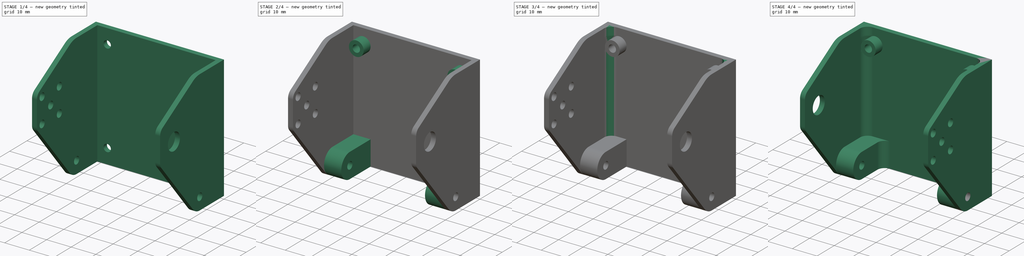
[diagram: build sequence overview — one tinted view per stage of 4, left to right]
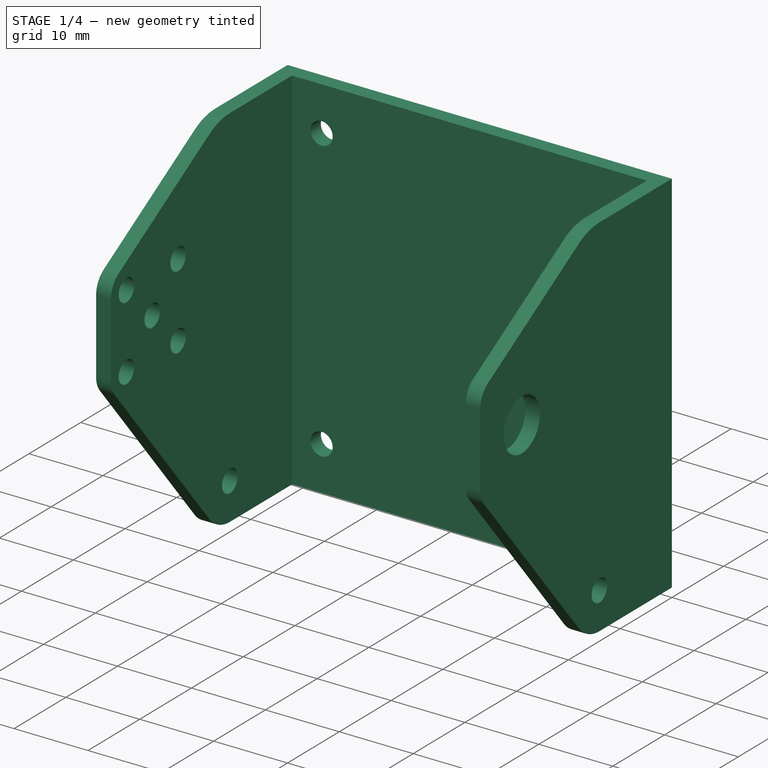
[diagram: stage 1 of 4 — iso view after this stage's code; geometry added in this stage tinted green]
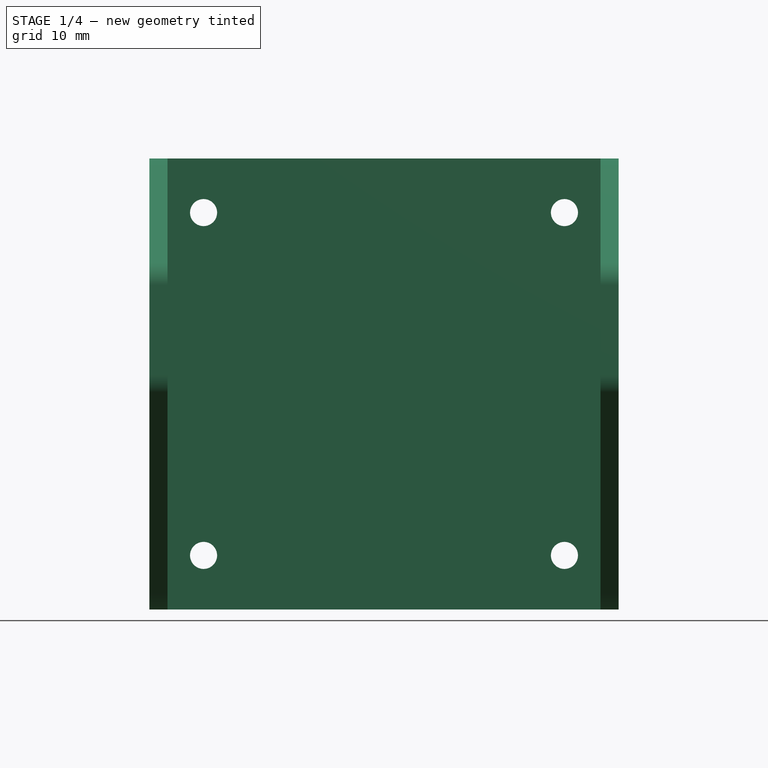
[diagram: stage 1 of 4 — front view after this stage's code; geometry added in this stage tinted green]
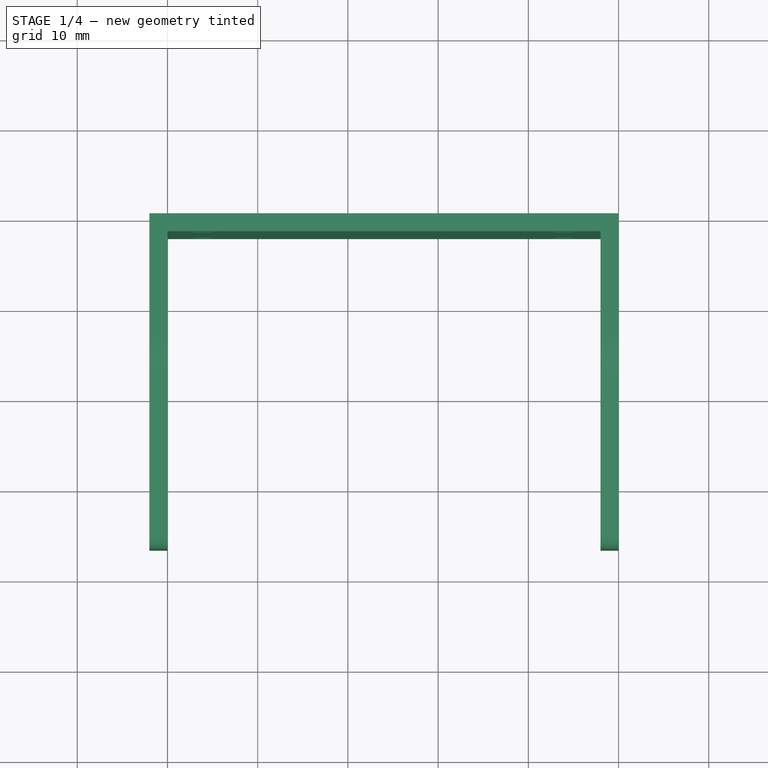
[diagram: stage 1 of 4 — top view after this stage's code; geometry added in this stage tinted green]
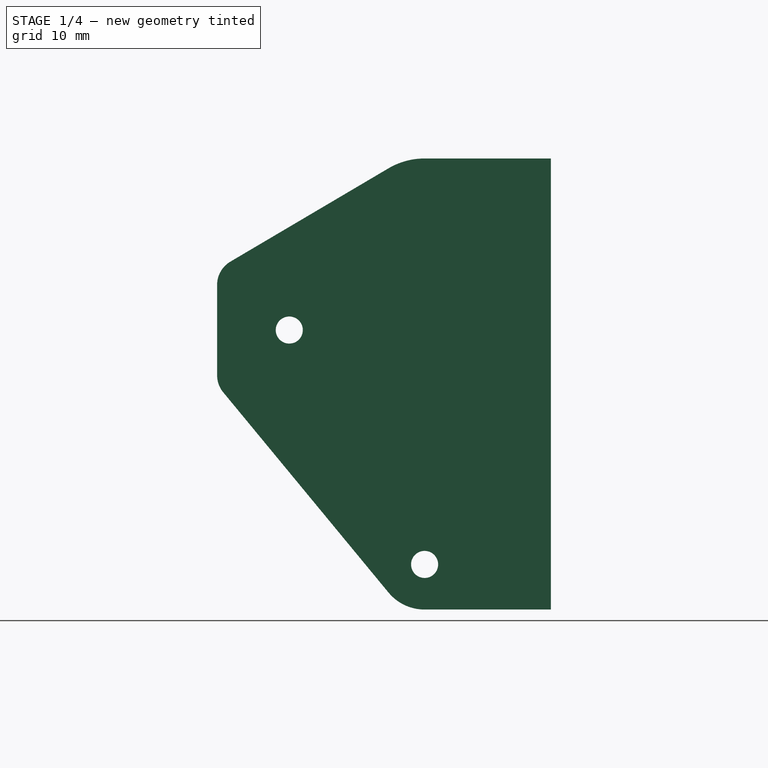
[diagram: stage 1 of 4 — right view after this stage's code; geometry added in this stage tinted green]
FCSTD DOCUMENT  (FreeCAD 0.20R29177 +426 (Git))
Label: 5L_hipjoint_lower
License: All rights reserved
LicenseURL: http://en.wikipedia.org/wiki/All_rights_reserved
objects: Sketcher::SketchObject×7, PartDesign::Pad×6, PartDesign::Fillet×4, Spreadsheet::Sheet×1, PartDesign::Pocket×1, PartDesign::Body×1, Part::Mirroring×1
note: 31 computed .brp shape members not serialized (recipe doc carries the construction recipe); baked Part::Feature solids carry a one-line shape summary decoded from their .brp

FEATURE [Spreadsheet::Sheet] Spreadsheet
  cells = A2=thickness; B2(thickness)=2; A4=hip_plate_width; B4(hip_plate_width)=48; C4=equal to knee_x_len; A5=hip_plate_depth; B5(hip_plate_depth)=50; C5=z; A6=screw_distance; B6(screw_distance)=7; A7=screw_center_height; B7(screw_center_height)=25; A8=screw_dia; B8(screw_dia)=3; A9=axis_dia; B9(axis_dia)=6; A10=axis_hole_dia; B10(axis_hole_dia)=7; A12=screw_servo_distance; B12(screw_servo_distance)==sqrt(B14 * B14 - B13 * B13); C12=variable e; A13=screw_servo_height; B13(screw_servo_height)=15; C13=variable a; A14=screw_servo_radius; B14(screw_servo_radius)=30; C14=variable f; A15=screw_servo_clearance; B15(screw_servo_clearance)=14; A17=knee_z_len; B17(knee_z_len)=40; A18=knee_x_len; B18(knee_x_len)=50; A19=knee_y_len; B19(knee_y_len)=44; A20=knee_front_len; B20(knee_front_len)==68 - 2 * B22; A21=knee_back_len; B21(knee_back_len)=36; A22=screw_outer_radius; B22(screw_outer_radius)=3; A23=knee_front_holes_dist; B23(knee_front_holes_dist)=55; A24=knee_front_holes_y_offset; B24(knee_front_holes_y_offset)=5; A25=knee_front_back_whole_dist; B25(knee_front_back_whole_dist)=30; A26=knee_back_holes_dist; B26(knee_back_holes_dist)=25
FEATURE [Sketcher::SketchObject] Sketch  label="baseSketch"
  FullyConstrained = true
  MapMode = 5
  Placement = pos=(0,0,0) rot=(1,0,0;1.5708rad)
  Support = -> [XZ_Plane]
  expr: Constraints[10] = Spreadsheet.hip_plate_width
  expr: Constraints[9] = Spreadsheet.hip_plate_depth
  sketch-geometry (8):
    g0: LineSegment StartX=0 StartY=0 StartZ=0 EndX=48 EndY=0 EndZ=0
    g1: LineSegment StartX=48 StartY=0 StartZ=0 EndX=48 EndY=50 EndZ=0
    g2: LineSegment StartX=48 StartY=50 StartZ=0 EndX=0 EndY=50 EndZ=0
    g3: LineSegment StartX=0 StartY=50 StartZ=0 EndX=0 EndY=0 EndZ=0
    g4: Circle CenterX=4 CenterY=44 CenterZ=0 NormalX=0 NormalY=0 NormalZ=1 AngleXU=0 Radius=1.5
    g5: Circle CenterX=44 CenterY=44 CenterZ=0 NormalX=0 NormalY=0 NormalZ=1 AngleXU=0 Radius=1.5
    g6: Circle CenterX=4 CenterY=6 CenterZ=0 NormalX=0 NormalY=0 NormalZ=1 AngleXU=0 Radius=1.5
    g7: Circle CenterX=44 CenterY=6 CenterZ=0 NormalX=0 NormalY=0 NormalZ=1 AngleXU=0 Radius=1.5
  constraints (23):
    c: Coincident(g0,g1)
    c: Coincident(g1,g2)
    c: Coincident(g2,g3)
    c: Coincident(g3,g0)
    c: Horizontal(g0)
    c: Horizontal(g2)
    c: Vertical(g1)
    c: Vertical(g3)
    c: Coincident(g0,g-1)
    c: DistanceY(g0,g1) = 50
    c: DistanceX(g0,g0) = 48
    c: DistanceX(g0,g6) = 4
    c: DistanceY(g0,g6) = 6
    c: DistanceY(g0,g7) = 6
    c: DistanceY(g5,g1) = 6
    c: DistanceY(g4,g2) = 6
    c: DistanceX(g2,g4) = 4
    c: DistanceX(g5,g1) = 4
    c: DistanceX(g7,g0) = 4
    c: Diameter(g5) = 3
    c: Diameter(g4) = 3
    c: Diameter(g6) = 3
    c: Diameter(g7) = 3
FEATURE [PartDesign::Pad] Pad  label="basePad"
  Direction = (0,-1,-2e-16)
  Length = 2
  Length2 = 10
  Placement = pos=(0,0,0) rot=(1,0,0;1.5708rad)
  Profile = -> Sketch
  ReferenceAxis = -> Sketch [N_Axis]
  Type = 0
  expr: Length = Spreadsheet.thickness
FEATURE [Sketcher::SketchObject] Sketch001  label="outerSideSketch"
  ExternalGeometry = -> [Pad]
  FullyConstrained = true
  MapMode = 5
  Placement = pos=(0,0,0) rot=(0.707107,0,-0.707107;3.14159rad)
  Support = -> [Pad]
  expr: Constraints[18] = Spreadsheet.screw_servo_distance
  expr: Constraints[19] = Spreadsheet.screw_servo_height
  expr: Constraints[20] = Spreadsheet.screw_dia
  expr: Constraints[29] = Spreadsheet.screw_servo_clearance
  expr: Constraints[38] = Spreadsheet.screw_servo_clearance + 4
  expr: Constraints[9] = Spreadsheet.screw_dia
  sketch-geometry (16):
    g0: LineSegment StartX=-50 StartY=0 StartZ=0 EndX=0 EndY=0 EndZ=0
    g1: LineSegment StartX=-1.8849 StartY=18 StartZ=0 EndX=-24.071 EndY=36.3136 EndZ=0
    g2: LineSegment StartX=-25.9808 StartY=37 StartZ=0 EndX=-35.9808 EndY=37 EndZ=0
    g3: LineSegment StartX=-38.5643 StartY=35.5248 StartZ=0 EndX=-48.9076 EndY=18 EndZ=0
    g4: Circle CenterX=-5 CenterY=14 CenterZ=0 NormalX=0 NormalY=0 NormalZ=1 AngleXU=0 Radius=1.5
    g5: Circle CenterX=-30.9808 CenterY=29 CenterZ=0 NormalX=0 NormalY=0 NormalZ=1 AngleXU=0 Radius=1.5
    g6: Circle CenterX=-25.9808 CenterY=24 CenterZ=0 NormalX=0 NormalY=0 NormalZ=1 AngleXU=0 Radius=1.5
    g7: Circle CenterX=-25.9808 CenterY=34 CenterZ=0 NormalX=0 NormalY=0 NormalZ=1 AngleXU=0 Radius=1.5
    g8: Circle CenterX=-35.9808 CenterY=34 CenterZ=0 NormalX=0 NormalY=0 NormalZ=1 AngleXU=0 Radius=1.5
    g9: Circle CenterX=-35.9808 CenterY=24 CenterZ=0 NormalX=0 NormalY=0 NormalZ=1 AngleXU=0 Radius=1.5
    g10: ArcOfCircle CenterX=-35.9808 CenterY=34 CenterZ=0 NormalX=0 NormalY=0 NormalZ=1 AngleXU=0 Radius=3 StartAngle=1.5708 EndAngle=2.6084
    g11: ArcOfCircle CenterX=-25.9808 CenterY=34 CenterZ=0 NormalX=0 NormalY=0 NormalZ=1 AngleXU=0 Radius=3 StartAngle=0.880726 EndAngle=1.5708
    g12: LineSegment StartX=-50 StartY=14 StartZ=0 EndX=-50 EndY=0 EndZ=0
    g13: LineSegment StartX=0 StartY=14 StartZ=0 EndX=0 EndY=0 EndZ=0
    g14: ArcOfCircle CenterX=-42.1303 CenterY=14 CenterZ=0 NormalX=0 NormalY=0 NormalZ=1 AngleXU=0 Radius=7.86966 StartAngle=2.6084 EndAngle=3.14159
    g15: ArcOfCircle CenterX=-5.18671 CenterY=14 CenterZ=0 NormalX=0 NormalY=0 NormalZ=1 AngleXU=0 Radius=5.18671 StartAngle=2e-16 EndAngle=0.880726
  constraints (39):
    c: Vertical(g8,g9)
    c: Vertical(g7,g6)
    c: Horizontal(g8,g7)
    c: Horizontal(g9,g6)
    c: Symmetric(g8,g6,g5)
    c: Equal(g8,g9)
    c: Equal(g8,g5)
    c: Equal(g8,g6)
    c: Equal(g8,g7)
    c: Diameter(g8) = 3
    c: DistanceX(g9,g6) = 10
    c: DistanceY(g9,g8) = 10
    c: Tangent(g2,g10) = -1.5708
    c: Tangent(g3,g10) = -1.5708
    c: Tangent(g2,g11) = -1.5708
    c: Tangent(g1,g11) = -1.5708
    c: Radius(g10) = 3
    c: Radius(g11) = 3
    c: DistanceX(g5,g4) = 25.9808
    c: DistanceY(g4,g5) = 15
    c: Diameter(g4) = 3
    c: Coincident(g0,g-3)
    c: Coincident(g0,g-1)
    c: Coincident(g8,g10)
    c: Coincident(g7,g11)
    c: Coincident(g12,g0)
    c: Coincident(g13,g0)
    c: Vertical(g12)
    c: Vertical(g13)
    c: DistanceY(g0,g4) = 14
    c: Equal(g12,g13)
    c: DistanceX(g4,g0) = 5
    c: Tangent(g3,g14) = -1.5708
    c: Tangent(g12,g14) = -1.5708
    c: Tangent(g1,g15) = -1.5708
    c: Tangent(g13,g15) = 1.5708
    c: Horizontal(g12,g4)
    c: Horizontal(g3,g1)
    c: DistanceY(g0,g3) = 18
FEATURE [PartDesign::Pad] Pad001  label="outerSidePad"
  BaseFeature = -> Pad
  Direction = (-1,0,-2e-16)
  Length = 2
  Length2 = 10
  Placement = pos=(0,0,0) rot=(1,0,0;1.5708rad)
  Profile = -> Sketch001
  ReferenceAxis = -> Sketch001 [N_Axis]
  Type = 0
  expr: Length = Spreadsheet.thickness
FEATURE [Sketcher::SketchObject] Sketch002  label="innerSideSketch"
  ExternalGeometry = -> [Pad]
  FullyConstrained = true
  MapMode = 5
  Placement = pos=(48,0,0) rot=(0.707107,0,0.707107;3.14159rad)
  Support = -> [Pad001]
  expr: Constraints[27] = Spreadsheet.screw_servo_clearance
  expr: Constraints[28] = Spreadsheet.screw_servo_clearance + 4
  expr: Constraints[2] = 5
  expr: Constraints[30] = Spreadsheet.hip_plate_depth
  expr: Constraints[3] = Spreadsheet.screw_dia
  expr: Constraints[4] = Spreadsheet.axis_hole_dia
  expr: Constraints[6] = Spreadsheet.screw_servo_distance
  expr: Constraints[7] = Spreadsheet.screw_servo_height
  expr: Constraints[8] = Spreadsheet.screw_servo_clearance
  sketch-geometry (12):
    g0: LineSegment StartX=24.071 StartY=36.3136 StartZ=0 EndX=1.8849 EndY=18 EndZ=0
    g1: LineSegment StartX=25.9808 StartY=37 StartZ=0 EndX=35.9808 EndY=37 EndZ=0
    g2: LineSegment StartX=38.5643 StartY=35.5248 StartZ=0 EndX=48.9076 EndY=18 EndZ=0
    g3: LineSegment StartX=50 StartY=0 StartZ=0 EndX=0 EndY=0 EndZ=0
    g4: ArcOfCircle CenterX=25.9808 CenterY=34 CenterZ=0 NormalX=0 NormalY=0 NormalZ=1 AngleXU=0 Radius=3 StartAngle=1.5708 EndAngle=2.26087
    g5: ArcOfCircle CenterX=35.9808 CenterY=34 CenterZ=0 NormalX=0 NormalY=0 NormalZ=1 AngleXU=0 Radius=3 StartAngle=0.533188 EndAngle=1.5708
    g6: Circle CenterX=30.9808 CenterY=29 CenterZ=0 NormalX=0 NormalY=0 NormalZ=1 AngleXU=0 Radius=3.5
    g7: Circle CenterX=5 CenterY=14 CenterZ=0 NormalX=0 NormalY=0 NormalZ=1 AngleXU=0 Radius=1.5
    g8: LineSegment StartX=0 StartY=14 StartZ=0 EndX=0 EndY=0 EndZ=0
    g9: LineSegment StartX=50 StartY=14 StartZ=0 EndX=50 EndY=0 EndZ=0
    g10: ArcOfCircle CenterX=5.18671 CenterY=14 CenterZ=0 NormalX=0 NormalY=0 NormalZ=1 AngleXU=0 Radius=5.18671 StartAngle=2.26087 EndAngle=3.14159
    g11: ArcOfCircle CenterX=42.1303 CenterY=14 CenterZ=0 NormalX=0 NormalY=0 NormalZ=1 AngleXU=0 Radius=7.86966 StartAngle=0 EndAngle=0.533188
  constraints (31):
    c: Equal(g4,g5)
    c: Radius(g4) = 3
    c: DistanceX(g3,g7) = 5
    c: Diameter(g7) = 3
    c: Diameter(g6) = 7
    c: Coincident(g3,g-1)
    c: DistanceX(g7,g6) = 25.9808
    c: DistanceY(g7,g6) = 15
    c: DistanceY(g3,g7) = 14
    c: DistanceX(g6,g5) = 5
    c: DistanceY(g6,g5) = 5
    c: Vertical(g1,g5)
    c: DistanceX(g4,g5) = 10
    c: Tangent(g0,g4) = -1.5708
    c: Tangent(g5,g2) = 1.5708
    c: Tangent(g5,g1) = 1.5708
    c: Tangent(g4,g1) = 1.5708
    c: Coincident(g8,g3)
    c: Vertical(g8)
    c: Coincident(g9,g3)
    c: Vertical(g9)
    c: Equal(g8,g9)
    c: Tangent(g0,g10) = -1.5708
    c: Tangent(g8,g10) = -1.5708
    c: Tangent(g2,g11) = 1.5708
    c: Tangent(g9,g11) = 1.5708
    c: Horizontal(g3)
    c: DistanceY(g8,g8) = 14
    c: DistanceY(g3,g0) = 18
    c: Horizontal(g0,g2)
    c: DistanceX(g3,g3) = 50
FEATURE [PartDesign::Pad] Pad002
  BaseFeature = -> Pad001
  Direction = (1,0,-2e-16)
  Length = 2
  Length2 = 10
  Placement = pos=(0,0,0) rot=(1,0,0;1.5708rad)
  Profile = -> Sketch002
  ReferenceAxis = -> Sketch002 [N_Axis]
  Type = 0
  expr: Length = Spreadsheet.thickness
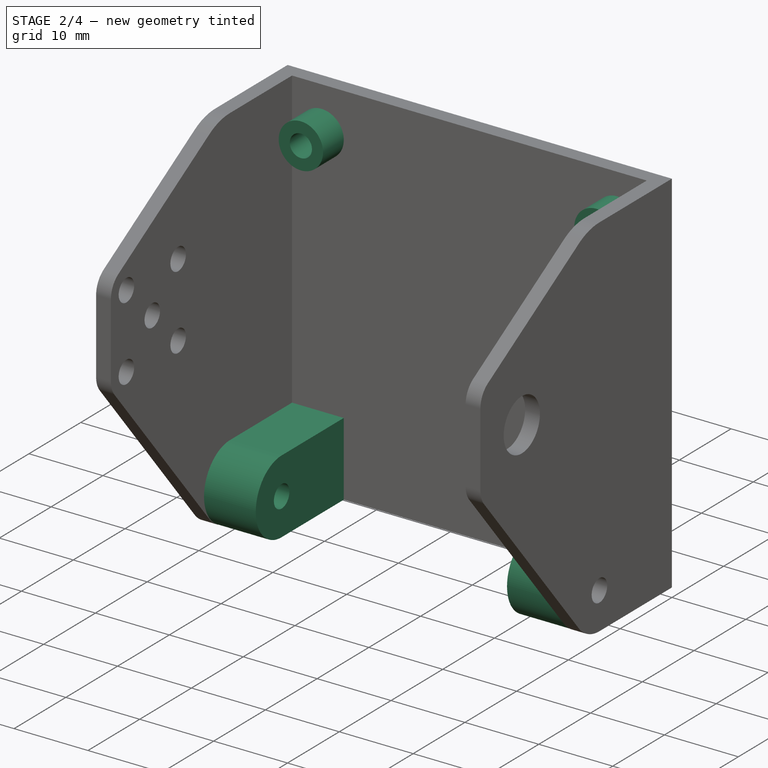
[diagram: stage 2 of 4 — iso view after this stage's code; geometry added in this stage tinted green]
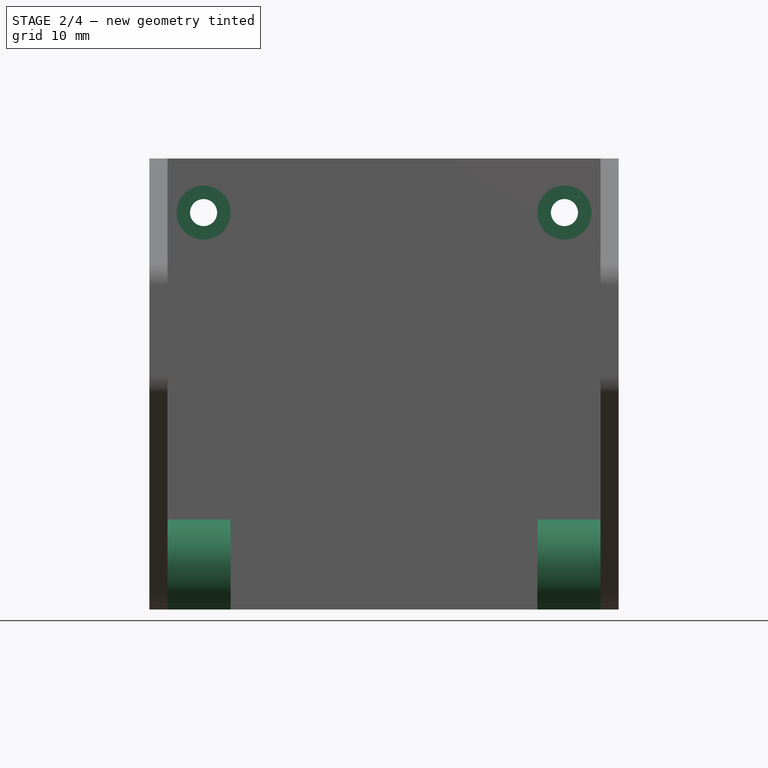
[diagram: stage 2 of 4 — front view after this stage's code; geometry added in this stage tinted green]
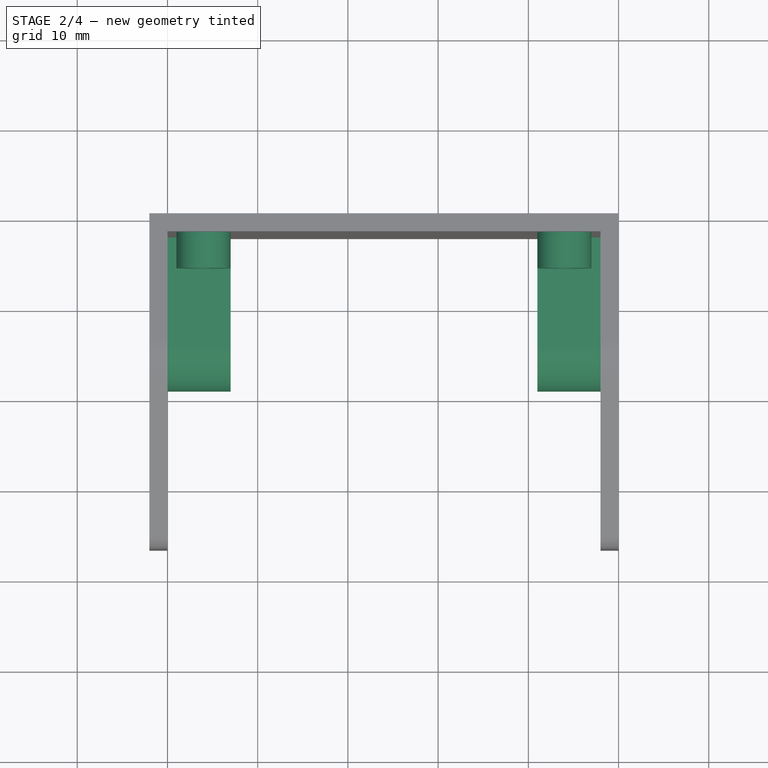
[diagram: stage 2 of 4 — top view after this stage's code; geometry added in this stage tinted green]
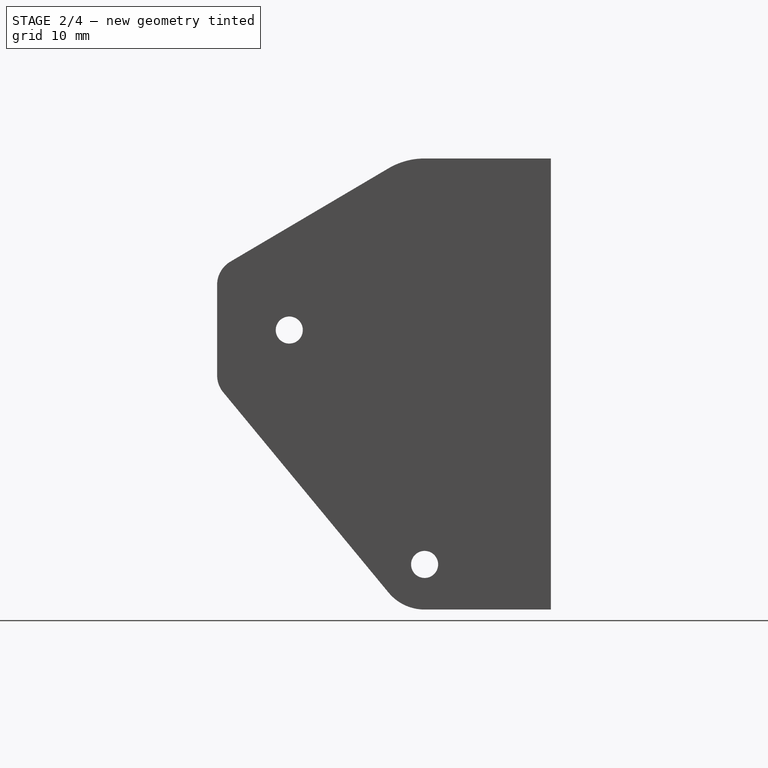
[diagram: stage 2 of 4 — right view after this stage's code; geometry added in this stage tinted green]
FEATURE [Sketcher::SketchObject] Sketch003
  ExternalGeometry = -> [Pad002]
  FullyConstrained = true
  MapMode = 5
  Placement = pos=(0,-2,0) rot=(1,0,0;1.5708rad)
  Support = -> [Pad002]
  sketch-geometry (4):
    g0: Circle CenterX=4 CenterY=44 CenterZ=0 NormalX=0 NormalY=0 NormalZ=1 AngleXU=0 Radius=1.5
    g1: Circle CenterX=4 CenterY=44 CenterZ=0 NormalX=0 NormalY=0 NormalZ=1 AngleXU=0 Radius=3
    g2: Circle CenterX=44 CenterY=44 CenterZ=0 NormalX=0 NormalY=0 NormalZ=1 AngleXU=0 Radius=1.5
    g3: Circle CenterX=44 CenterY=44 CenterZ=0 NormalX=0 NormalY=0 NormalZ=1 AngleXU=0 Radius=3
  constraints (8):
    c: Coincident(g0,g-3)
    c: Coincident(g1,g0)
    c: Equal(g0,g-3)
    c: Diameter(g1) = 6
    c: Coincident(g2,g-4)
    c: Coincident(g3,g2)
    c: Equal(g2,g-4)
    c: Diameter(g3) = 6
FEATURE [PartDesign::Pad] Pad003
  BaseFeature = -> Pad002
  Direction = (0,-1,2e-16)
  Length = 4
  Length2 = 10
  Placement = pos=(0,0,0) rot=(1,0,0;1.5708rad)
  Profile = -> Sketch003
  ReferenceAxis = -> Sketch003 [N_Axis]
  Type = 0
FEATURE [Sketcher::SketchObject] Sketch004
  ExternalGeometry = -> [Pad003]
  FullyConstrained = true
  MapMode = 5
  Placement = pos=(-1e-16,0,0) rot=(0.707107,0,0.707107;3.14159rad)
  Support = -> [Pad003]
  sketch-geometry (5):
    g0: Circle CenterX=5 CenterY=14 CenterZ=0 NormalX=0 NormalY=0 NormalZ=1 AngleXU=0 Radius=1.5
    g1: LineSegment StartX=9e-16 StartY=2 StartZ=0 EndX=9e-16 EndY=14 EndZ=0
    g2: LineSegment StartX=10 StartY=14 StartZ=0 EndX=10 EndY=2 EndZ=0
    g3: LineSegment StartX=10 StartY=2 StartZ=0 EndX=0 EndY=2 EndZ=0
    g4: ArcOfCircle CenterX=5 CenterY=14 CenterZ=0 NormalX=0 NormalY=0 NormalZ=1 AngleXU=0 Radius=5 StartAngle=0 EndAngle=3.14159
  constraints (14):
    c: Coincident(g0,g-3)
    c: Equal(g0,g-3)
    c: PointOnObject(g1,g-5)
    c: Vertical(g1)
    c: PointOnObject(g2,g-5)
    c: Vertical(g2)
    c: Coincident(g3,g2)
    c: Coincident(g3,g1)
    c: DistanceX(g3,g3) = 10
    c: Coincident(g4,g0)
    c: Coincident(g4,g1)
    c: Coincident(g4,g2)
    c: Horizontal(g1,g2)
    c: Horizontal(g1,g0)
FEATURE [PartDesign::Pad] Pad004
  BaseFeature = -> Pad003
  Direction = (1,0,2e-16)
  Length = 7
  Length2 = 10
  Placement = pos=(0,0,0) rot=(1,0,0;1.5708rad)
  Profile = -> Sketch004
  ReferenceAxis = -> Sketch004 [N_Axis]
  Type = 0
FEATURE [Sketcher::SketchObject] Sketch005
  ExternalGeometry = -> [Pad004]
  FullyConstrained = true
  MapMode = 5
  Placement = pos=(48,-1.9e-15,-1.34e-14) rot=(-0.707107,0,0.707107;3.14159rad)
  Support = -> [Pad004]
  sketch-geometry (5):
    g0: LineSegment StartX=-10 StartY=14 StartZ=0 EndX=-10 EndY=2 EndZ=0
    g1: LineSegment StartX=-1.78e-14 StartY=2 StartZ=0 EndX=-1.78e-14 EndY=14 EndZ=0
    g2: ArcOfCircle CenterX=-5 CenterY=14 CenterZ=0 NormalX=0 NormalY=0 NormalZ=1 AngleXU=0 Radius=5 StartAngle=1e-16 EndAngle=3.14159
    g3: LineSegment StartX=-10 StartY=2 StartZ=0 EndX=-1.78e-14 EndY=2 EndZ=0
    g4: Circle CenterX=-5 CenterY=14 CenterZ=0 NormalX=0 NormalY=0 NormalZ=1 AngleXU=0 Radius=1.5
  constraints (14):
    c: PointOnObject(g0,g-4)
    c: Vertical(g0)
    c: PointOnObject(g1,g-4)
    c: Vertical(g1)
    c: Coincident(g2,g-3)
    c: Coincident(g2,g1)
    c: Coincident(g2,g0)
    c: Horizontal(g0,g1)
    c: Horizontal(g2,g0)
    c: Coincident(g3,g0)
    c: Coincident(g3,g1)
    c: DistanceX(g3,g3) = 10
    c: Coincident(g4,g2)
    c: Equal(g4,g-3)
FEATURE [PartDesign::Pad] Pad005
  BaseFeature = -> Pad004
  Direction = (-1,0,2e-16)
  Length = 7
  Length2 = 10
  Placement = pos=(0,0,0) rot=(1,0,0;1.5708rad)
  Profile = -> Sketch005
  ReferenceAxis = -> Sketch005 [N_Axis]
  Type = 0
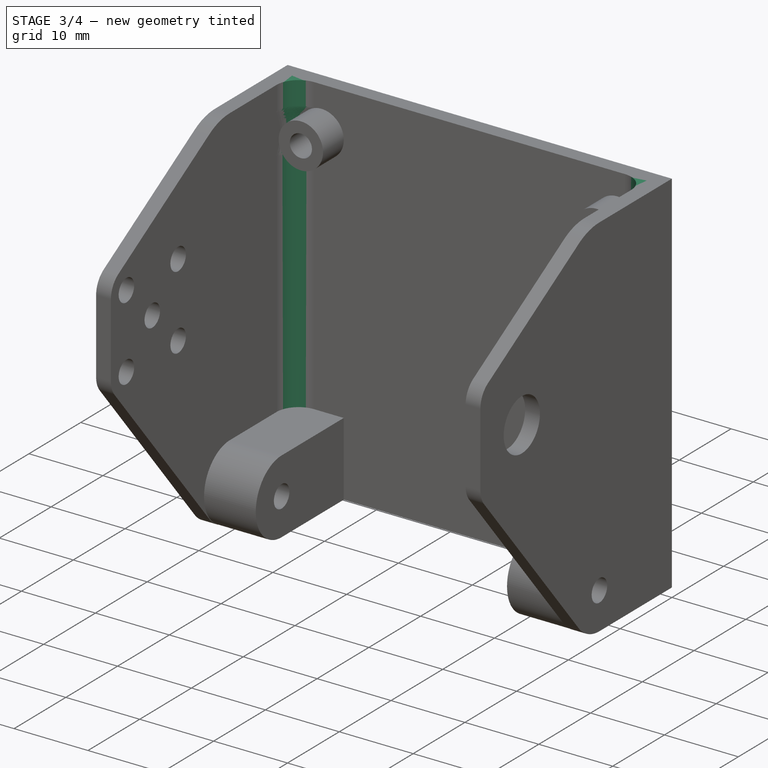
[diagram: stage 3 of 4 — iso view after this stage's code; geometry added in this stage tinted green]
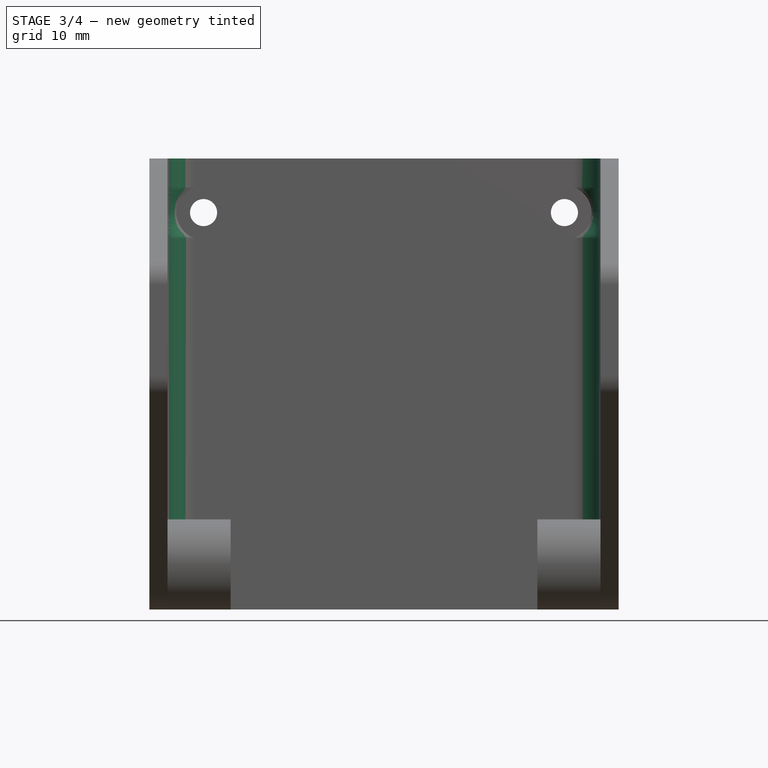
[diagram: stage 3 of 4 — front view after this stage's code; geometry added in this stage tinted green]
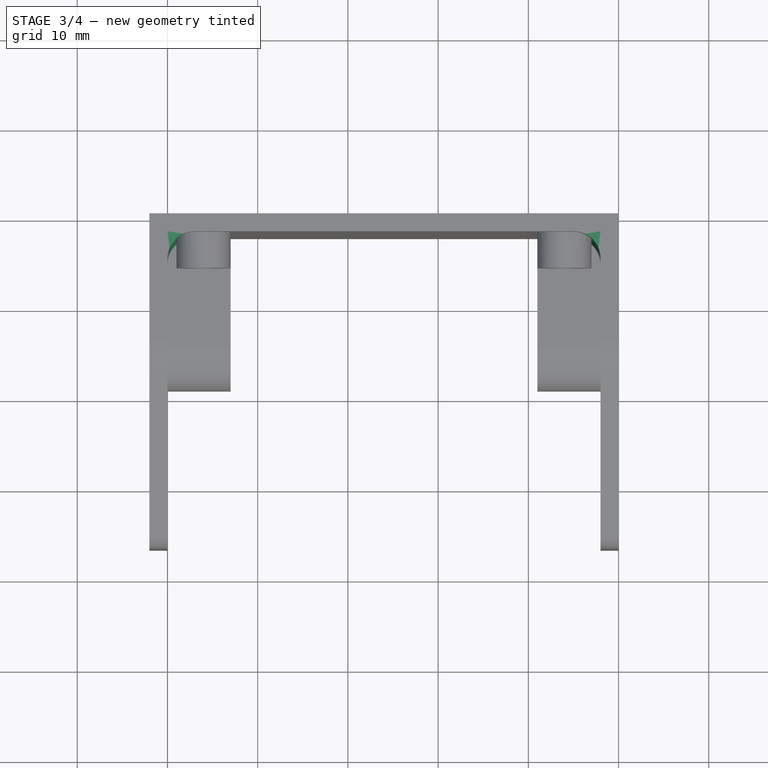
[diagram: stage 3 of 4 — top view after this stage's code; geometry added in this stage tinted green]
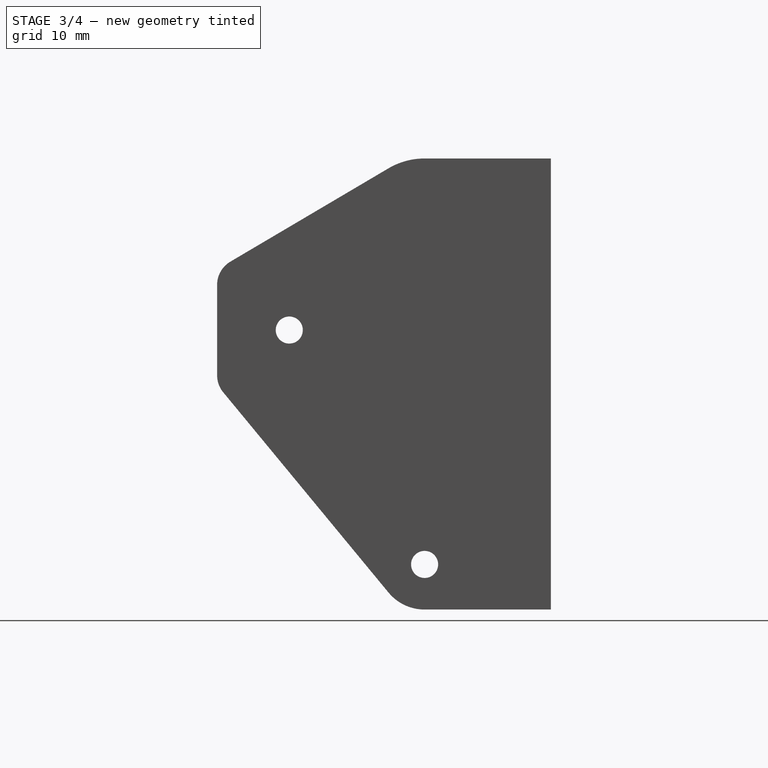
[diagram: stage 3 of 4 — right view after this stage's code; geometry added in this stage tinted green]
FEATURE [Sketcher::SketchObject] Sketch006
  ExternalGeometry = -> [Pad005]
  FullyConstrained = true
  MapMode = 5
  Placement = pos=(0,-2,7e-16) rot=(1,0,0;1.5708rad)
  Support = -> [Pad005]
  sketch-geometry (2):
    g0: Circle CenterX=4 CenterY=6 CenterZ=0 NormalX=0 NormalY=0 NormalZ=1 AngleXU=0 Radius=1.5
    g1: Circle CenterX=44 CenterY=6 CenterZ=0 NormalX=0 NormalY=0 NormalZ=1 AngleXU=0 Radius=1.5
  constraints (4):
    c: Coincident(g0,g-3)
    c: Coincident(g1,g-4)
    c: Equal(g-3,g0)
    c: Equal(g1,g-4)
FEATURE [PartDesign::Pocket] Pocket
  BaseFeature = -> Pad005
  Direction = (0,1,-4e-16)
  Length = 5
  Length2 = 5
  Placement = pos=(0,0,0) rot=(1,0,0;1.5708rad)
  Profile = -> Sketch006
  ReferenceAxis = -> Sketch006 [N_Axis]
  Reversed = true
  Type = 0
FEATURE [PartDesign::Fillet] Fillet
  Base = -> Pocket [Edge26]
  BaseFeature = -> Pocket
  Placement = pos=(0,0,0) rot=(1,0,0;1.5708rad)
  Radius = 3
  SupportTransform = false
  UseAllEdges = false
FEATURE [PartDesign::Fillet] Fillet001
  Base = -> Fillet [Edge10]
  BaseFeature = -> Fillet
  Placement = pos=(0,0,0) rot=(1,0,0;1.5708rad)
  Radius = 3
  SupportTransform = false
  UseAllEdges = false
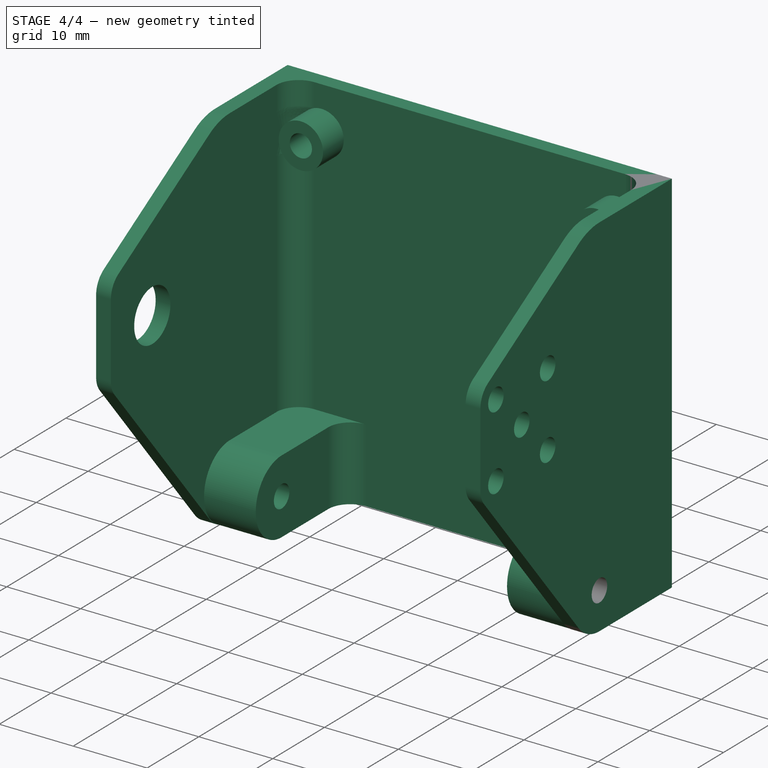
[diagram: stage 4 of 4 — iso view after this stage's code; geometry added in this stage tinted green]
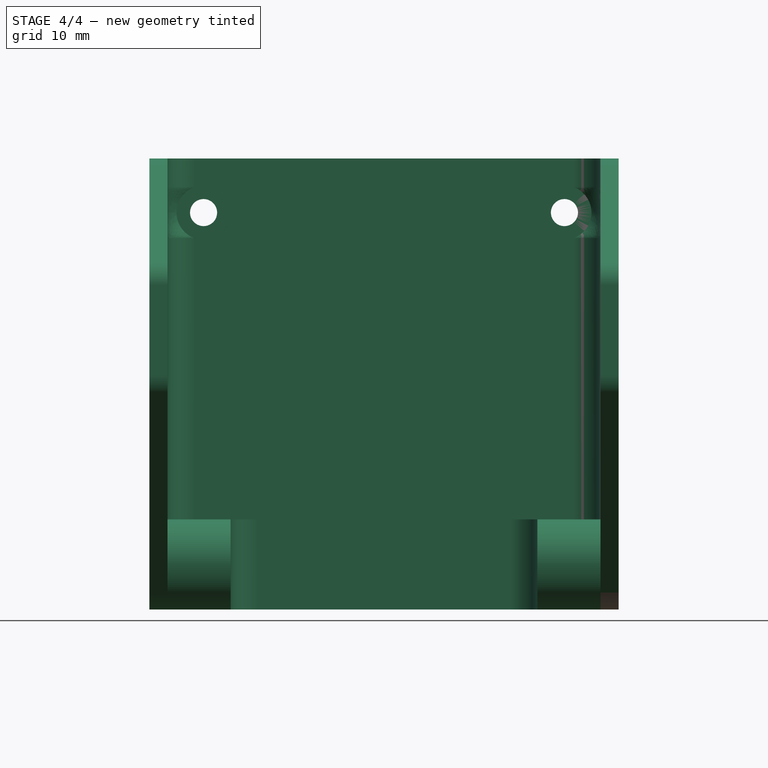
[diagram: stage 4 of 4 — front view after this stage's code; geometry added in this stage tinted green]
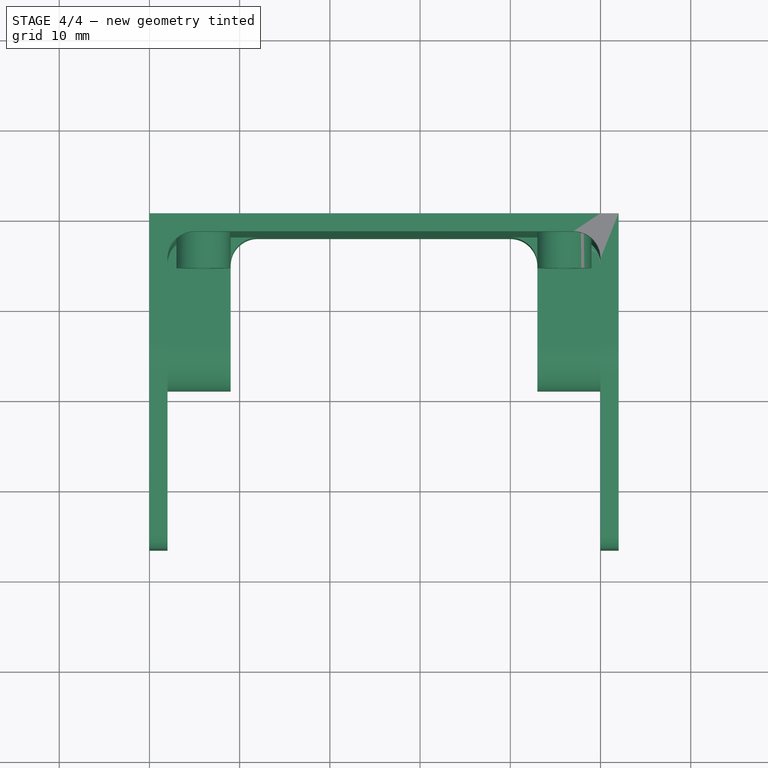
[diagram: stage 4 of 4 — top view after this stage's code; geometry added in this stage tinted green]
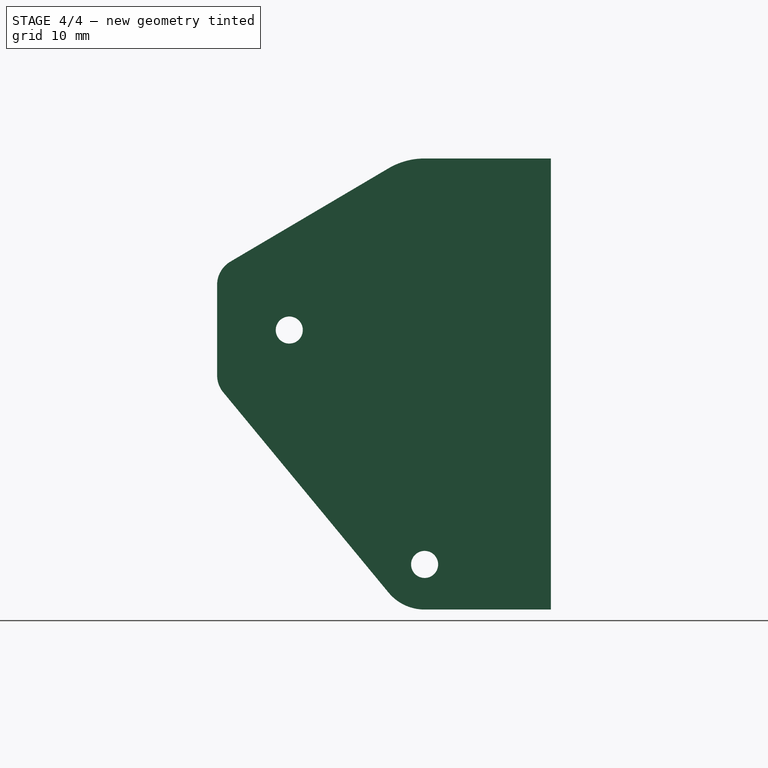
[diagram: stage 4 of 4 — right view after this stage's code; geometry added in this stage tinted green]
FEATURE [PartDesign::Fillet] Fillet002
  Base = -> Fillet001 [Edge12]
  BaseFeature = -> Fillet001
  Placement = pos=(0,0,0) rot=(1,0,0;1.5708rad)
  Radius = 3
  SupportTransform = false
  UseAllEdges = false
FEATURE [PartDesign::Fillet] Fillet003
  Base = -> Fillet002 [Edge3]
  BaseFeature = -> Fillet002
  Placement = pos=(0,0,0) rot=(1,0,0;1.5708rad)
  Radius = 3
  SupportTransform = false
  UseAllEdges = false
FEATURE [PartDesign::Body] Body
  Group = -> [Sketch,Pad,Sketch001,Pad001,Sketch002,Pad002,Sketch003,Pad003,Sketch004,Pad004,Sketch005,Pad005,Sketch006,Pocket,Fillet,Fillet001,Fillet002,Fillet003]
  Origin = -> Origin
  Tip = -> Fillet003
FEATURE [Part::Mirroring] Part__Mirroring  label="Body (Mirror #1)"
  Base = (0,0,0)
  Normal = (1,0,0)
  Source = -> Body
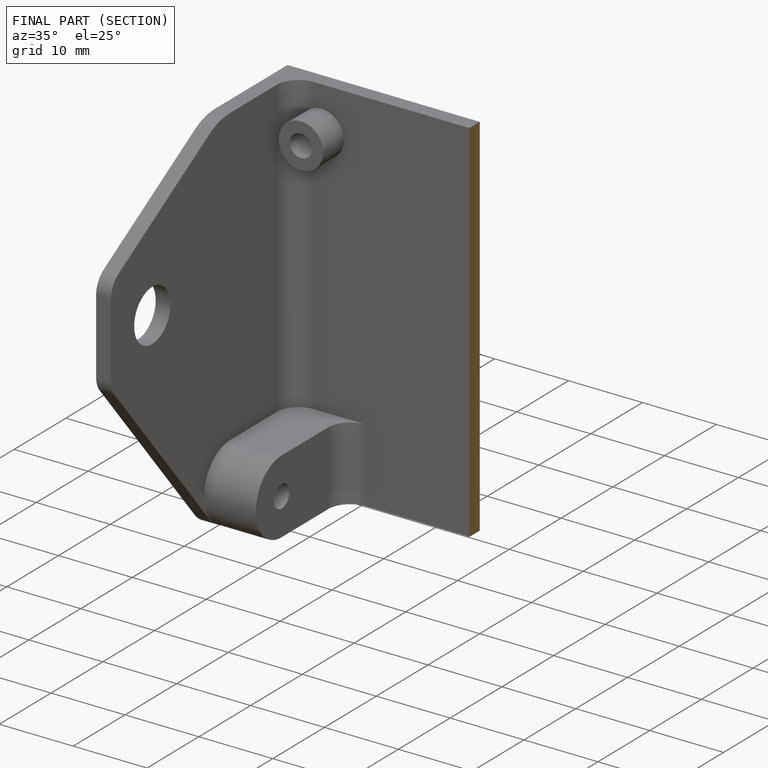
[diagram: finished part — half-section view (interior)]
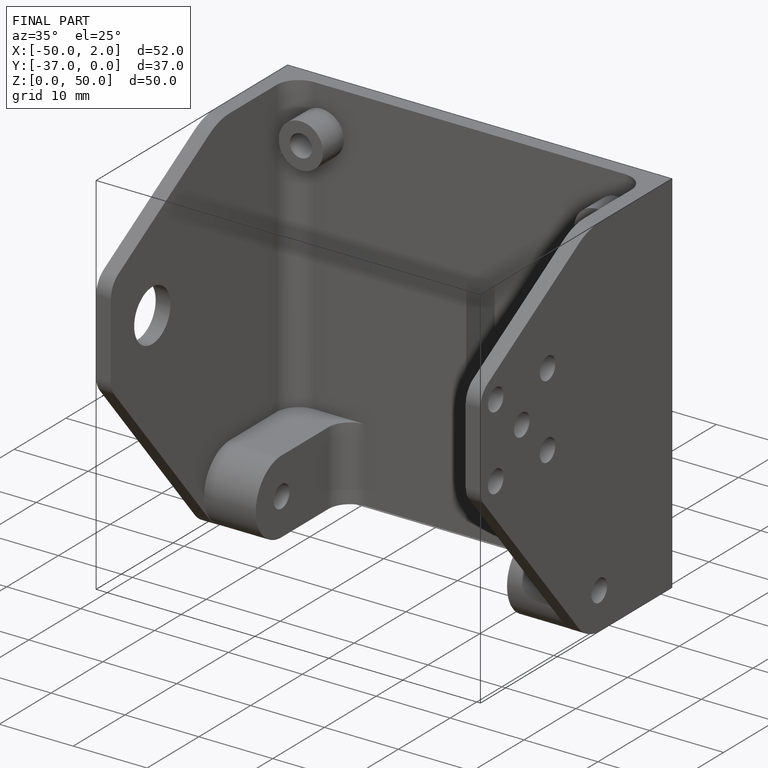
[diagram: finished part — iso view with bounding-box wireframe]
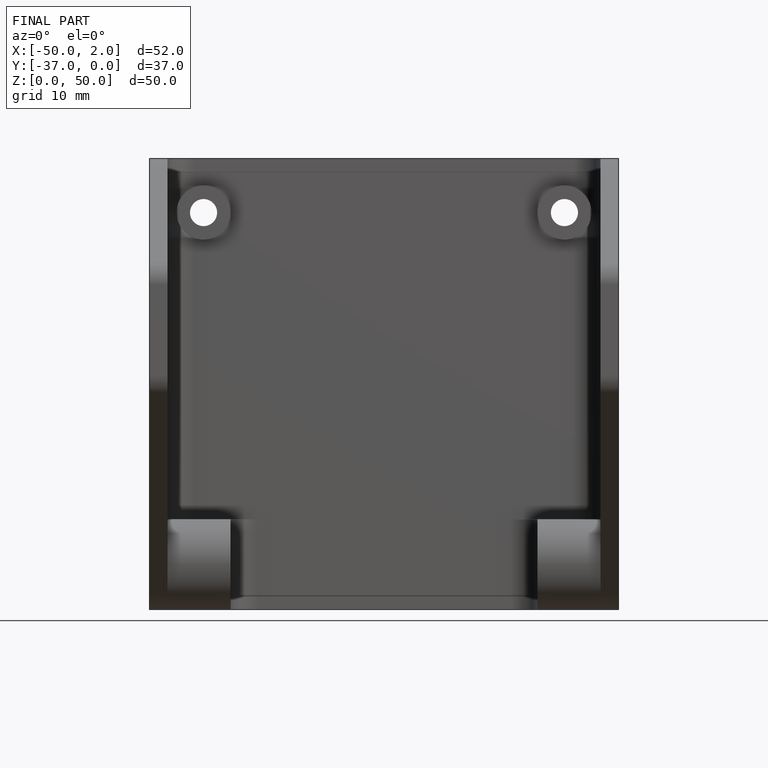
[diagram: finished part — front view with bounding-box wireframe]
